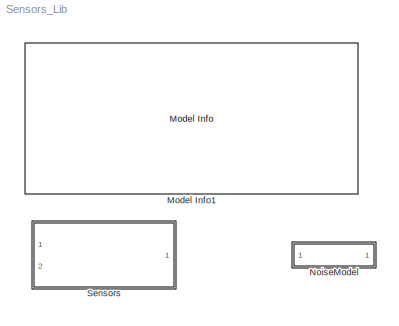
MODEL Sensors_Lib
KIND library
BLOCK [Reference] Model Info1  REF=simulink/Model-Wide\nUtilities/Model Info
  BlockCM = None
  DisplayStringWithTags = MODEL INFORMATION\nSensors Library\n\nUniversity of Minnesota\nAerospace Engineering and Mechanics\nCopyright 2011 Regents of the University of Minnesota. All rights reserved.\n\n== SVN Info ==\n%<ModelVersion>\nLast modified by %<LastModifiedBy> on %<LastModificationDate>
  Frame = on
  FunctionWithSeparateData = off
  HorizontalTextAlignment = Left
  InitialBlockCM = None
  LeftAlignmentValue = 0.02
  MaskDisplayString = MODEL INFORMATION\\nSensors Library\\n\\nUniversity of Minnesota\\nAerospace Engineering and Mechanics\\nCopyright 2011 Regents of the University of Minnesota. All rights reserved.\\n\\n== SVN Info ==\\n$Id: Sensors_Lib.mdl 908 2012-10-04 20:40:18Z joh07594 $\\nLast modified by dept of AEM on 04-Oct-2012 10:20:05
  Ports = []
  RTWMemSecDataConstants = Inherit from model
  RTWMemSecDataInternal = Inherit from model
  RTWMemSecDataParameters = Inherit from model
  RTWMemSecFuncExecute = Inherit from model
  RTWMemSecFuncInitTerm = Inherit from model
  SID = 826
  ShowPortLabels = FromPortIcon
  SourceBlock = simulink/Model-Wide\nUtilities/Model Info
  SourceBlockDiagram = Sensors_Lib
  SourceType = CMBlock
  SystemSampleTime = -1
  TagMaxNumber = 20
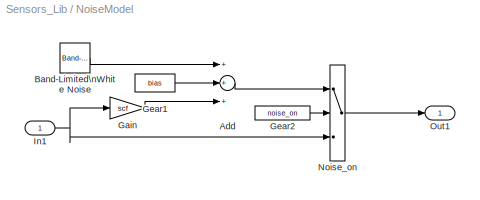
BLOCK [SubSystem] NoiseModel
  FunctionWithSeparateData = off
  MaskCallbackString = |||||
  MaskDescription = Add bias, scale factor, and white noise to a signal\n\n- 'on/off': 1 = noise on, 0 = noise off.\n- 'sigma' : Standard deviation of white noise.\n- 'seed'  : Random number seed.\n- 'bias'  : Constant mean value offset of white noise.\n- 'scale factor' : Scale factor applied to original signal.\n- 'Timestep': Time step of the simulation\n
  MaskDisplay = disp('bias/scf/noise')
  MaskEnableString = on,on,on,on,on,on
  MaskHideContents = off
  MaskIconFrame = on
  MaskIconOpaque = on
  MaskIconRotate = none
  MaskIconUnits = autoscale
  MaskPortRotate = default
  MaskPromptString = on/off|sigma:|seed:|bias:|scale factor:|TimeStep:
  MaskStyleString = edit,edit,edit,edit,edit,edit
  MaskToolTipString = on,on,on,on,on,on
  MaskTunableValueString = on,on,on,on,on,on
  MaskType = Sensor Model
  MaskValueString = 1|AC.Sensors.IMU.p_noise|878234|0|1|SampleTime
  MaskVariables = noise_on=@1;sigma=@2;seed=@3;bias=@4;scf=@5;timestep=@6;
  MaskVisibilityString = on,on,on,on,on,on
  MinAlgLoopOccurrences = off
  Opaque = off
  Ports = [1, 1]
  PropExecContextOutsideSubsystem = off
  RTWSystemCode = Auto
  RequestExecContextInheritance = off
  SID = 726
BLOCK [Sum] NoiseModel/Add
  InputSameDT = off
  Inputs = +++
  OutDataType = sfix(16)
  OutDataTypeMode = Inherit via internal rule
  OutDataTypeStr = Inherit: Inherit via internal rule
  OutScaling = 2^-10
  Ports = [3, 1]
  SID = 728
  SaturateOnIntegerOverflow = off
BLOCK [Reference] NoiseModel/Band-Limited\nWhite Noise  REF=simulink/Sources/Band-Limited\nWhite Noise
  Cov = sigma
  FunctionWithSeparateData = off
  Ports = [0, 1]
  RTWMemSecDataConstants = Inherit from model
  RTWMemSecDataInternal = Inherit from model
  RTWMemSecDataParameters = Inherit from model
  RTWMemSecFuncExecute = Inherit from model
  RTWMemSecFuncInitTerm = Inherit from model
  SID = 735
  ShowPortLabels = FromPortIcon
  SourceBlock = simulink/Sources/Band-Limited\nWhite Noise
  SourceType = Band-Limited White Noise.
  SystemSampleTime = -1
  Ts = timestep
  VectorParams1D = on
  seed = seed
BLOCK [Gain] NoiseModel/Gain
  Gain = scf
  OutDataType = sfix(16)
  OutDataTypeMode = Inherit via internal rule
  OutDataTypeStr = Inherit: Inherit via internal rule
  OutScaling = 2^0
  ParamDataTypeStr = Inherit: Inherit via internal rule
  ParameterDataType = sfix(16)
  ParameterDataTypeMode = Inherit via internal rule
  ParameterScaling = 2^0
  SID = 729
  SaturateOnIntegerOverflow = off
BLOCK [Constant] NoiseModel/Gear1
  OutDataType = sfix(16)
  OutScaling = 2^0
  SID = 730
  Value = bias
BLOCK [Constant] NoiseModel/Gear2
  OutDataType = sfix(16)
  OutScaling = 2^0
  SID = 731
  Value = noise_on
BLOCK [Inport] NoiseModel/In1
  IconDisplay = Port number
  OutDataType = sfix(16)
  OutScaling = 2^0
  SID = 727
BLOCK [Switch] NoiseModel/Noise_on
  SID = 732
  Threshold = 0.5
BLOCK [Outport] NoiseModel/Out1
  IconDisplay = Port number
  OutDataType = sfix(16)
  OutScaling = 2^0
  SID = 734
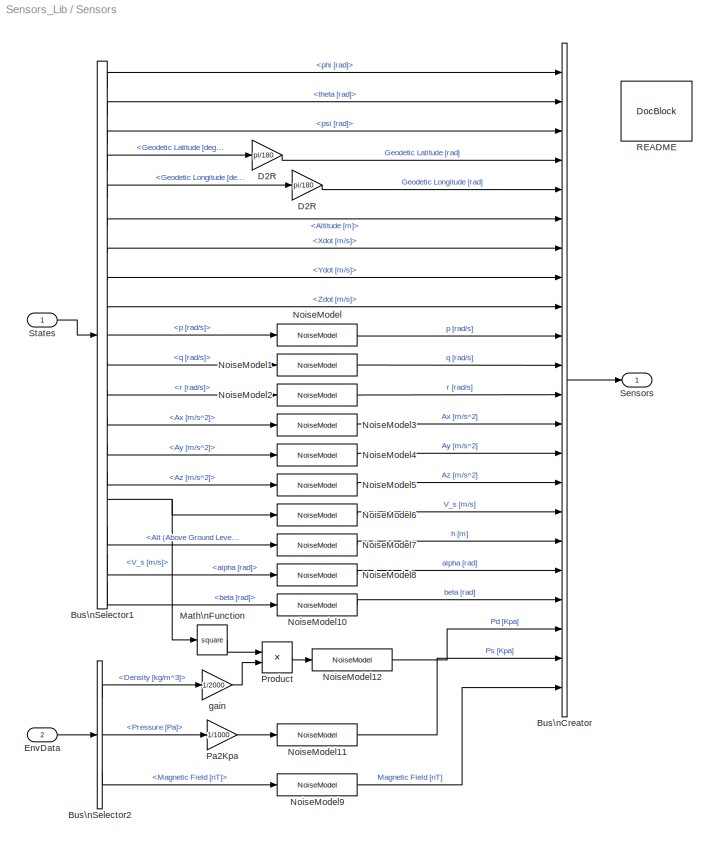
BLOCK [SubSystem] Sensors
  FunctionWithSeparateData = off
  MaskHideContents = off
  MinAlgLoopOccurrences = off
  Opaque = off
  Ports = [2, 1]
  PropExecContextOutsideSubsystem = off
  RTWSystemCode = Auto
  RequestExecContextInheritance = off
  SID = 704
BLOCK [BusCreator] Sensors/Bus\nCreator
  DisplayOption = bar
  Inputs = 22
  Ports = [22, 1]
  SID = 831
BLOCK [BusSelector] Sensors/Bus\nSelector1
  OutputSignals = Euler [rad].phi [rad],Euler [rad].theta [rad],Euler [rad].psi [rad],Nav.Geodetic Latitude [deg],Nav.Geodetic Longitude [deg],Nav.Altitude [m],V_e [m/s].Xdot [m/s],V_e [m/s].Ydot [m/s],V_e [m/s].Zdot [m/s],AngVel [rad/s].p [rad/s],AngVel [rad/s].q [rad/s],AngVel [rad/s].r [rad/s],Accels [m/s^2].Ax [m/s^2],Accels [m/s^2].Ay [m/s^2],Accels [m/s^2].Az [m/s^2],WindAxesParam.V_s [m/s],Nav.Alt (Above Gro...<+65ch>
  Ports = [1, 19]
  SID = 709
BLOCK [BusSelector] Sensors/Bus\nSelector2
  OutputSignals = Density [kg/m^3],Pressure [Pa],Magnetic Field [nT]
  Ports = [1, 3]
  SID = 746
BLOCK [Gain] Sensors/D2R
  Gain = pi/180
  OutDataType = fixdt(1, 16)
  OutDataTypeMode = Inherit via internal rule
  OutDataTypeStr = Inherit: Inherit via internal rule
  OutScaling = 2^0
  ParamDataTypeStr = Inherit: Inherit via internal rule
  ParameterDataType = fixdt(1, 16)
  ParameterDataTypeMode = Inherit via internal rule
  ParameterScaling = 2^0
  SID = 841
  SampleTime = SampleTime
  SaturateOnIntegerOverflow = off
BLOCK [Gain] Sensors/D2R 
  Gain = pi/180
  OutDataType = fixdt(1, 16)
  OutDataTypeMode = Inherit via internal rule
  OutDataTypeStr = Inherit: Inherit via internal rule
  OutScaling = 2^0
  ParamDataTypeStr = Inherit: Inherit via internal rule
  ParameterDataType = fixdt(1, 16)
  ParameterDataTypeMode = Inherit via internal rule
  ParameterScaling = 2^0
  SID = 842
  SampleTime = SampleTime
  SaturateOnIntegerOverflow = off
BLOCK [Inport] Sensors/EnvData
  IconDisplay = Port number
  Port = 2
  SID = 821
BLOCK [Math] Sensors/Math\nFunction
  Operator = square
  OutDataType = fixdt(1, 16)
  OutScaling = 2^0
  Ports = [1, 1]
  SID = 835
BLOCK [Reference] Sensors/NoiseModel  REF=Sensors_Lib/NoiseModel
  FunctionWithSeparateData = off
  Ports = [1, 1]
  RTWMemSecDataConstants = Inherit from model
  RTWMemSecDataInternal = Inherit from model
  RTWMemSecDataParameters = Inherit from model
  RTWMemSecFuncExecute = Inherit from model
  RTWMemSecFuncInitTerm = Inherit from model
  SID = 736
  ShowPortLabels = FromPortIcon
  SourceBlock = Sensors_Lib/NoiseModel
  SourceType = Sensor Model
  SystemSampleTime = -1
  bias = AC.Sensors.IMU.p_bias
  noise_on = AC.Sensors.NoiseOn
  scf = AC.Sensors.IMU.p_scf
  seed = 878230
  sigma = AC.Sensors.IMU.p_noise
  timestep = SampleTime
BLOCK [Reference] Sensors/NoiseModel1  REF=Sensors_Lib/NoiseModel
  FunctionWithSeparateData = off
  Ports = [1, 1]
  RTWMemSecDataConstants = Inherit from model
  RTWMemSecDataInternal = Inherit from model
  RTWMemSecDataParameters = Inherit from model
  RTWMemSecFuncExecute = Inherit from model
  RTWMemSecFuncInitTerm = Inherit from model
  SID = 737
  ShowPortLabels = FromPortIcon
  SourceBlock = Sensors_Lib/NoiseModel
  SourceType = Sensor Model
  SystemSampleTime = -1
  bias = AC.Sensors.IMU.q_bias
  noise_on = AC.Sensors.NoiseOn
  scf = AC.Sensors.IMU.q_scf
  seed = 878231
  sigma = AC.Sensors.IMU.q_noise
  timestep = SampleTime
BLOCK [Reference] Sensors/NoiseModel10  REF=Sensors_Lib/NoiseModel
  FunctionWithSeparateData = off
  Ports = [1, 1]
  RTWMemSecDataConstants = Inherit from model
  RTWMemSecDataInternal = Inherit from model
  RTWMemSecDataParameters = Inherit from model
  RTWMemSecFuncExecute = Inherit from model
  RTWMemSecFuncInitTerm = Inherit from model
  SID = 828
  ShowPortLabels = FromPortIcon
  SourceBlock = Sensors_Lib/NoiseModel
  SourceType = Sensor Model
  SystemSampleTime = -1
  bias = AC.Sensors.AirData.beta_bias
  noise_on = AC.Sensors.NoiseOn
  scf = AC.Sensors.AirData.beta_scf
  seed = 87828
  sigma = AC.Sensors.AirData.beta_noise
  timestep = SampleTime
BLOCK [Reference] Sensors/NoiseModel11  REF=Sensors_Lib/NoiseModel
  FunctionWithSeparateData = off
  Ports = [1, 1]
  RTWMemSecDataConstants = Inherit from model
  RTWMemSecDataInternal = Inherit from model
  RTWMemSecDataParameters = Inherit from model
  RTWMemSecFuncExecute = Inherit from model
  RTWMemSecFuncInitTerm = Inherit from model
  SID = 832
  ShowPortLabels = FromPortIcon
  SourceBlock = Sensors_Lib/NoiseModel
  SourceType = Sensor Model
  SystemSampleTime = -1
  bias = AC.Sensors.AirData.Ps_bias
  noise_on = AC.Sensors.NoiseOn
  scf = AC.Sensors.AirData.Ps_scf
  seed = 8782378
  sigma = AC.Sensors.AirData.Ps_noise
  timestep = SampleTime
BLOCK [Reference] Sensors/NoiseModel12  REF=Sensors_Lib/NoiseModel
  FunctionWithSeparateData = off
  Ports = [1, 1]
  RTWMemSecDataConstants = Inherit from model
  RTWMemSecDataInternal = Inherit from model
  RTWMemSecDataParameters = Inherit from model
  RTWMemSecFuncExecute = Inherit from model
  RTWMemSecFuncInitTerm = Inherit from model
  SID = 837
  ShowPortLabels = FromPortIcon
  SourceBlock = Sensors_Lib/NoiseModel
  SourceType = Sensor Model
  SystemSampleTime = -1
  bias = AC.Sensors.AirData.Pd_bias
  noise_on = AC.Sensors.NoiseOn
  scf = AC.Sensors.AirData.Pd_scf
  seed = 87823
  sigma = AC.Sensors.AirData.Pd_noise
  timestep = SampleTime
BLOCK [Reference] Sensors/NoiseModel2  REF=Sensors_Lib/NoiseModel
  FunctionWithSeparateData = off
  Ports = [1, 1]
  RTWMemSecDataConstants = Inherit from model
  RTWMemSecDataInternal = Inherit from model
  RTWMemSecDataParameters = Inherit from model
  RTWMemSecFuncExecute = Inherit from model
  RTWMemSecFuncInitTerm = Inherit from model
  SID = 738
  ShowPortLabels = FromPortIcon
  SourceBlock = Sensors_Lib/NoiseModel
  SourceType = Sensor Model
  SystemSampleTime = -1
  bias = AC.Sensors.IMU.r_bias
  noise_on = AC.Sensors.NoiseOn
  scf = AC.Sensors.IMU.r_scf
  seed = 878232
  sigma = AC.Sensors.IMU.r_noise
  timestep = SampleTime
BLOCK [Reference] Sensors/NoiseModel3  REF=Sensors_Lib/NoiseModel
  FunctionWithSeparateData = off
  Ports = [1, 1]
  RTWMemSecDataConstants = Inherit from model
  RTWMemSecDataInternal = Inherit from model
  RTWMemSecDataParameters = Inherit from model
  RTWMemSecFuncExecute = Inherit from model
  RTWMemSecFuncInitTerm = Inherit from model
  SID = 739
  ShowPortLabels = FromPortIcon
  SourceBlock = Sensors_Lib/NoiseModel
  SourceType = Sensor Model
  SystemSampleTime = -1
  bias = AC.Sensors.IMU.ax_bias
  noise_on = AC.Sensors.NoiseOn
  scf = AC.Sensors.IMU.ax_scf
  seed = 878233
  sigma = AC.Sensors.IMU.ax_noise
  timestep = SampleTime
BLOCK [Reference] Sensors/NoiseModel4  REF=Sensors_Lib/NoiseModel
  FunctionWithSeparateData = off
  Ports = [1, 1]
  RTWMemSecDataConstants = Inherit from model
  RTWMemSecDataInternal = Inherit from model
  RTWMemSecDataParameters = Inherit from model
  RTWMemSecFuncExecute = Inherit from model
  RTWMemSecFuncInitTerm = Inherit from model
  SID = 740
  ShowPortLabels = FromPortIcon
  SourceBlock = Sensors_Lib/NoiseModel
  SourceType = Sensor Model
  SystemSampleTime = -1
  bias = AC.Sensors.IMU.ay_bias
  noise_on = AC.Sensors.NoiseOn
  scf = AC.Sensors.IMU.ay_scf
  seed = 878234
  sigma = AC.Sensors.IMU.ay_noise
  timestep = SampleTime
BLOCK [Reference] Sensors/NoiseModel5  REF=Sensors_Lib/NoiseModel
  FunctionWithSeparateData = off
  Ports = [1, 1]
  RTWMemSecDataConstants = Inherit from model
  RTWMemSecDataInternal = Inherit from model
  RTWMemSecDataParameters = Inherit from model
  RTWMemSecFuncExecute = Inherit from model
  RTWMemSecFuncInitTerm = Inherit from model
  SID = 741
  ShowPortLabels = FromPortIcon
  SourceBlock = Sensors_Lib/NoiseModel
  SourceType = Sensor Model
  SystemSampleTime = -1
  bias = AC.Sensors.IMU.az_bias
  noise_on = AC.Sensors.NoiseOn
  scf = AC.Sensors.IMU.az_scf
  seed = 878235
  sigma = AC.Sensors.IMU.az_noise
  timestep = SampleTime
BLOCK [Reference] Sensors/NoiseModel6  REF=Sensors_Lib/NoiseModel
  FunctionWithSeparateData = off
  Ports = [1, 1]
  RTWMemSecDataConstants = Inherit from model
  RTWMemSecDataInternal = Inherit from model
  RTWMemSecDataParameters = Inherit from model
  RTWMemSecFuncExecute = Inherit from model
  RTWMemSecFuncInitTerm = Inherit from model
  SID = 742
  ShowPortLabels = FromPortIcon
  SourceBlock = Sensors_Lib/NoiseModel
  SourceType = Sensor Model
  SystemSampleTime = -1
  bias = AC.Sensors.AirData.ias_bias
  noise_on = AC.Sensors.NoiseOn
  scf = AC.Sensors.AirData.ias_scf
  seed = 878236
  sigma = AC.Sensors.AirData.ias_noise
  timestep = SampleTime
BLOCK [Reference] Sensors/NoiseModel7  REF=Sensors_Lib/NoiseModel
  FunctionWithSeparateData = off
  Ports = [1, 1]
  RTWMemSecDataConstants = Inherit from model
  RTWMemSecDataInternal = Inherit from model
  RTWMemSecDataParameters = Inherit from model
  RTWMemSecFuncExecute = Inherit from model
  RTWMemSecFuncInitTerm = Inherit from model
  SID = 748
  ShowPortLabels = FromPortIcon
  SourceBlock = Sensors_Lib/NoiseModel
  SourceType = Sensor Model
  SystemSampleTime = -1
  bias = AC.Sensors.AirData.h_bias
  noise_on = AC.Sensors.NoiseOn
  scf = AC.Sensors.AirData.h_scf
  seed = 87828
  sigma = AC.Sensors.AirData.h_noise
  timestep = SampleTime
BLOCK [Reference] Sensors/NoiseModel8  REF=Sensors_Lib/NoiseModel
  FunctionWithSeparateData = off
  Ports = [1, 1]
  RTWMemSecDataConstants = Inherit from model
  RTWMemSecDataInternal = Inherit from model
  RTWMemSecDataParameters = Inherit from model
  RTWMemSecFuncExecute = Inherit from model
  RTWMemSecFuncInitTerm = Inherit from model
  SID = 827
  ShowPortLabels = FromPortIcon
  SourceBlock = Sensors_Lib/NoiseModel
  SourceType = Sensor Model
  SystemSampleTime = -1
  bias = AC.Sensors.AirData.alpha_bias
  noise_on = AC.Sensors.NoiseOn
  scf = AC.Sensors.AirData.alpha_scf
  seed = 87828
  sigma = AC.Sensors.AirData.alpha_noise
  timestep = SampleTime
BLOCK [Reference] Sensors/NoiseModel9  REF=Sensors_Lib/NoiseModel
  FunctionWithSeparateData = off
  Ports = [1, 1]
  RTWMemSecDataConstants = Inherit from model
  RTWMemSecDataInternal = Inherit from model
  RTWMemSecDataParameters = Inherit from model
  RTWMemSecFuncExecute = Inherit from model
  RTWMemSecFuncInitTerm = Inherit from model
  SID = 747
  ShowPortLabels = FromPortIcon
  SourceBlock = Sensors_Lib/NoiseModel
  SourceType = Sensor Model
  SystemSampleTime = -1
  bias = [AC.Sensors.IMU.hx_bias, AC.Sensors.IMU.hy_bias, AC.Sensors.IMU.hz_bias]
  noise_on = AC.Sensors.NoiseOn
  scf = [AC.Sensors.IMU.hx_scf, AC.Sensors.IMU.hy_scf, AC.Sensors.IMU.hz_scf]
  seed = 878237
  sigma = [AC.Sensors.IMU.hx_noise, AC.Sensors.IMU.hy_noise,AC.Sensors.IMU.hz_noise]
  timestep = SampleTime
BLOCK [Gain] Sensors/Pa2Kpa
  Gain = 1/1000
  OutDataType = fixdt(1, 16)
  OutDataTypeMode = Inherit via internal rule
  OutDataTypeStr = Inherit: Inherit via internal rule
  OutScaling = 2^0
  ParamDataTypeStr = Inherit: Inherit via internal rule
  ParameterDataType = fixdt(1, 16)
  ParameterDataTypeMode = Inherit via internal rule
  ParameterScaling = 2^0
  SID = 833
  SaturateOnIntegerOverflow = off
BLOCK [Product] Sensors/Product
  InputSameDT = off
  OutDataType = fixdt(1, 16)
  OutDataTypeMode = Inherit via internal rule
  OutDataTypeStr = Inherit: Inherit via internal rule
  OutScaling = 2^0
  Ports = [2, 1]
  SID = 836
  SaturateOnIntegerOverflow = off
BLOCK [Reference] Sensors/README  REF=simulink/Model-Wide\nUtilities/DocBlock
  DocumentType = Text
  FunctionWithSeparateData = off
  Ports = []
  RTWMemSecDataConstants = Inherit from model
  RTWMemSecDataInternal = Inherit from model
  RTWMemSecDataParameters = Inherit from model
  RTWMemSecFuncExecute = Inherit from model
  RTWMemSecFuncInitTerm = Inherit from model
  SID = 824
  ShowPortLabels = FromPortIcon
  SourceBlock = simulink/Model-Wide\nUtilities/DocBlock
  SourceType = DocBlock
  SystemSampleTime = -1
  UserData = DataTag0
  UserDataPersistent = on
BLOCK [Outport] Sensors/Sensors
  IconDisplay = Port number
  OutDataType = fixdt(1, 16)
  OutScaling = 2^0
  SID = 830
BLOCK [Inport] Sensors/States
  IconDisplay = Port number
  SID = 705
BLOCK [Gain] Sensors/gain
  Gain = 1/2000
  OutDataType = fixdt(1, 16)
  OutDataTypeMode = Inherit via internal rule
  OutDataTypeStr = Inherit: Inherit via internal rule
  OutScaling = 2^0
  ParamDataTypeStr = Inherit: Inherit via internal rule
  ParameterDataType = fixdt(1, 16)
  ParameterDataTypeMode = Inherit via internal rule
  ParameterScaling = 2^0
  SID = 834
  SaturateOnIntegerOverflow = off
LINE NoiseModel/Add:1 -> NoiseModel/Noise_on:1
LINE NoiseModel/Band-Limited\nWhite Noise:1 -> NoiseModel/Add:1
LINE NoiseModel/Gain:1 -> NoiseModel/Add:3
LINE NoiseModel/Gear1:1 -> NoiseModel/Add:2
LINE NoiseModel/Gear2:1 -> NoiseModel/Noise_on:2
NET NoiseModel/In1:1 -> NoiseModel/Gain:1, NoiseModel/Noise_on:3
LINE NoiseModel/Noise_on:1 -> NoiseModel/Out1:1
LINE Sensors/Bus\nCreator:1 -> Sensors/Sensors:1
LINE Sensors/Bus\nSelector1:1 -> Sensors/Bus\nCreator:1
LINE Sensors/Bus\nSelector1:10 -> Sensors/NoiseModel:1
LINE Sensors/Bus\nSelector1:11 -> Sensors/NoiseModel1:1
LINE Sensors/Bus\nSelector1:12 -> Sensors/NoiseModel2:1
LINE Sensors/Bus\nSelector1:13 -> Sensors/NoiseModel3:1
LINE Sensors/Bus\nSelector1:14 -> Sensors/NoiseModel4:1
LINE Sensors/Bus\nSelector1:15 -> Sensors/NoiseModel5:1
NET Sensors/Bus\nSelector1:16 -> Sensors/Math\nFunction:1, Sensors/NoiseModel6:1
LINE Sensors/Bus\nSelector1:17 -> Sensors/NoiseModel7:1
LINE Sensors/Bus\nSelector1:18 -> Sensors/NoiseModel8:1
LINE Sensors/Bus\nSelector1:19 -> Sensors/NoiseModel10:1
LINE Sensors/Bus\nSelector1:2 -> Sensors/Bus\nCreator:2
LINE Sensors/Bus\nSelector1:3 -> Sensors/Bus\nCreator:3
LINE Sensors/Bus\nSelector1:4 -> Sensors/D2R:1
LINE Sensors/Bus\nSelector1:5 -> Sensors/D2R :1
LINE Sensors/Bus\nSelector1:6 -> Sensors/Bus\nCreator:6
LINE Sensors/Bus\nSelector1:7 -> Sensors/Bus\nCreator:7
LINE Sensors/Bus\nSelector1:8 -> Sensors/Bus\nCreator:8
LINE Sensors/Bus\nSelector1:9 -> Sensors/Bus\nCreator:9
LINE Sensors/Bus\nSelector2:1 -> Sensors/gain:1
LINE Sensors/Bus\nSelector2:2 -> Sensors/Pa2Kpa:1
LINE Sensors/Bus\nSelector2:3 -> Sensors/NoiseModel9:1
LINE Sensors/D2R :1 -> Sensors/Bus\nCreator:5
LINE Sensors/D2R:1 -> Sensors/Bus\nCreator:4
LINE Sensors/EnvData:1 -> Sensors/Bus\nSelector2:1
LINE Sensors/Math\nFunction:1 -> Sensors/Product:1
LINE Sensors/NoiseModel10:1 -> Sensors/Bus\nCreator:19
LINE Sensors/NoiseModel11:1 -> Sensors/Bus\nCreator:21
LINE Sensors/NoiseModel12:1 -> Sensors/Bus\nCreator:20
LINE Sensors/NoiseModel1:1 -> Sensors/Bus\nCreator:11
LINE Sensors/NoiseModel2:1 -> Sensors/Bus\nCreator:12
LINE Sensors/NoiseModel3:1 -> Sensors/Bus\nCreator:13
LINE Sensors/NoiseModel4:1 -> Sensors/Bus\nCreator:14
LINE Sensors/NoiseModel5:1 -> Sensors/Bus\nCreator:15
LINE Sensors/NoiseModel6:1 -> Sensors/Bus\nCreator:16
LINE Sensors/NoiseModel7:1 -> Sensors/Bus\nCreator:17
LINE Sensors/NoiseModel8:1 -> Sensors/Bus\nCreator:18
LINE Sensors/NoiseModel9:1 -> Sensors/Bus\nCreator:22
LINE Sensors/NoiseModel:1 -> Sensors/Bus\nCreator:10
LINE Sensors/Pa2Kpa:1 -> Sensors/NoiseModel11:1
LINE Sensors/Product:1 -> Sensors/NoiseModel12:1
LINE Sensors/States:1 -> Sensors/Bus\nSelector1:1
LINE Sensors/gain:1 -> Sensors/Product:2
note: NET lines group one-source signal fan-out (src -> all destinations, sorted); 1:1 wires keep LINE
